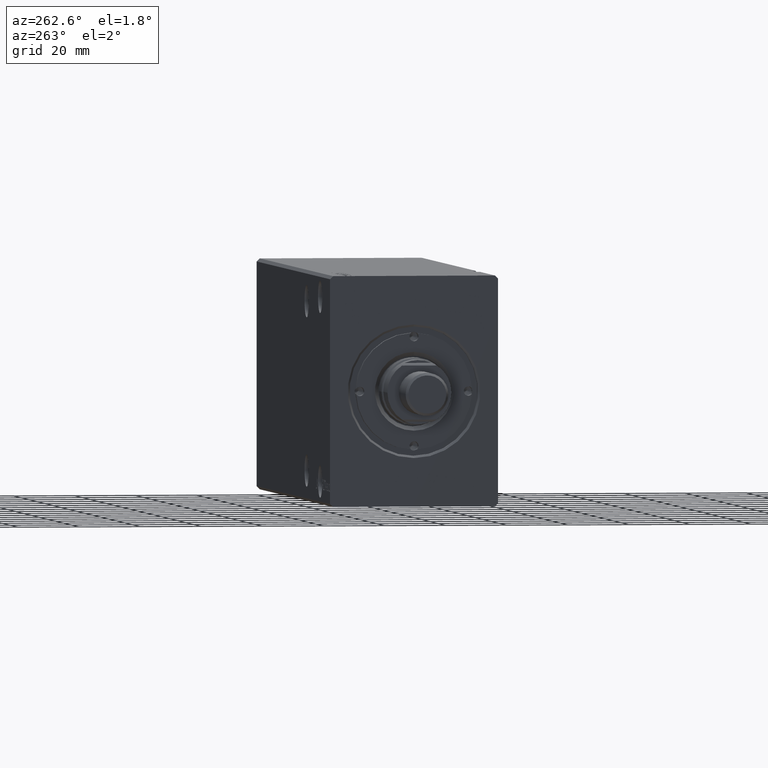
[diagram: clean part render]
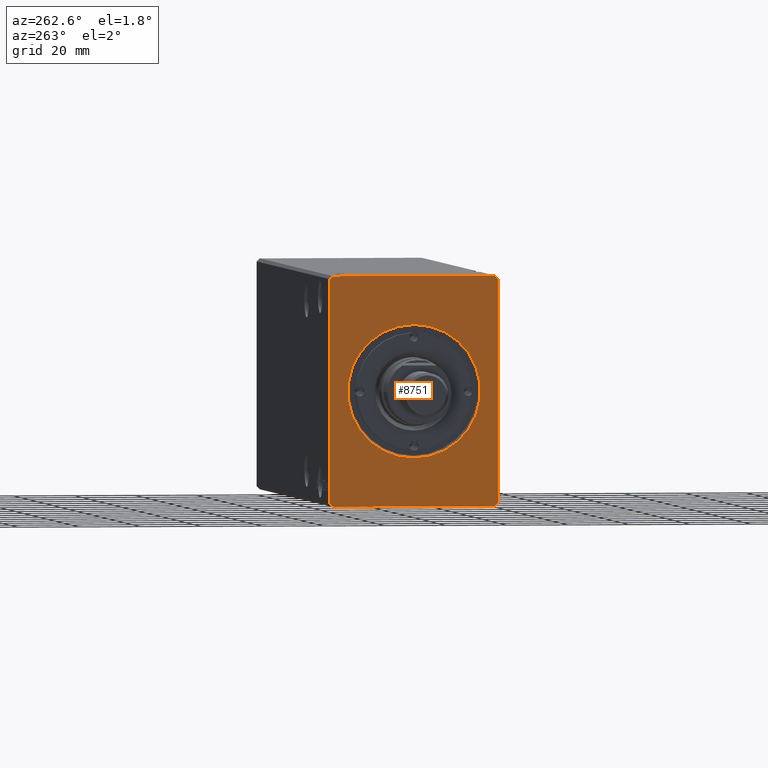
[diagram: same view with one face highlighted and labeled with its STEP entity id]
A machine part, auxiliary view. The second image highlights one B-rep face of the part: STEP entity #8751.
In plain terms, the highlighted planar face has unit normal (1, 0, 0).
Its self-contained STEP definition (entity closure, byte-faithful):
#1003 = ORIENTED_EDGE ( 'NONE', *, *, #10166, .F. ) ;
#1475 = ORIENTED_EDGE ( 'NONE', *, *, #6436, .F. ) ;
#1487 = FACE_BOUND ( 'NONE', #33525, .T. ) ;
#2251 = ORIENTED_EDGE ( 'NONE', *, *, #4912, .F. ) ;
#2388 = DIRECTION ( 'NONE',  ( 0.000000000000000000, 4.752667057470705491E-17, -1.000000000000000000 ) ) ;
#2597 = VECTOR ( 'NONE', #18594, 1000.000000000000000 ) ;
#2629 = DIRECTION ( 'NONE',  ( 0.000000000000000000, 1.000000000000000000, 0.000000000000000000 ) ) ;
#3026 = DIRECTION ( 'NONE',  ( 1.000000000000000000, 0.000000000000000000, 0.000000000000000000 ) ) ;
#3547 = VERTEX_POINT ( 'NONE', #29458 ) ;
#4417 = EDGE_CURVE ( 'NONE', #3547, #12595, #6644, .T. ) ;
#4719 = CARTESIAN_POINT ( 'NONE',  ( 0.000000000000000000, 27.50000000000000711, -36.49999999999999289 ) ) ;
#4832 = ORIENTED_EDGE ( 'NONE', *, *, #35967, .F. ) ;
#4912 = EDGE_CURVE ( 'NONE', #9816, #18045, #37871, .T. ) ;
#5031 = EDGE_CURVE ( 'NONE', #31186, #23995, #32594, .T. ) ;
#5056 = CARTESIAN_POINT ( 'NONE',  ( 0.000000000000000000, -26.50000000000000711, 37.50000000000000711 ) ) ;
#5124 = ORIENTED_EDGE ( 'NONE', *, *, #5031, .F. ) ;
#6436 = EDGE_CURVE ( 'NONE', #12595, #21805, #18595, .T. ) ;
#6644 = LINE ( 'NONE', #19378, #11441 ) ;
#7053 = VERTEX_POINT ( 'NONE', #36841 ) ;
#7811 = LINE ( 'NONE', #11634, #34590 ) ;
#8314 = DIRECTION ( 'NONE',  ( 0.000000000000000000, 0.000000000000000000, -1.000000000000000000 ) ) ;
#8329 = DIRECTION ( 'NONE',  ( 1.000000000000000000, 0.000000000000000000, 0.000000000000000000 ) ) ;
#8562 = LINE ( 'NONE', #20902, #34264 ) ;
#8751 = ADVANCED_FACE ( 'NONE', ( #1487, #32989 ), #26348, .F. ) ;
#8896 = AXIS2_PLACEMENT_3D ( 'NONE', #29757, #26546, #8314 ) ;
#9816 = VERTEX_POINT ( 'NONE', #38918 ) ;
#10166 = EDGE_CURVE ( 'NONE', #33729, #9816, #20458, .T. ) ;
#11339 = EDGE_CURVE ( 'NONE', #7053, #21535, #31689, .T. ) ;
#11441 = VECTOR ( 'NONE', #15939, 1000.000000000000114 ) ;
#11634 = CARTESIAN_POINT ( 'NONE',  ( 0.000000000000000000, 26.50000000000000355, 37.50000000000000711 ) ) ;
#11773 = CARTESIAN_POINT ( 'NONE',  ( 0.000000000000000000, 0.000000000000000000, 0.000000000000000000 ) ) ;
#12595 = VERTEX_POINT ( 'NONE', #37403 ) ;
#12964 = AXIS2_PLACEMENT_3D ( 'NONE', #11773, #8329, #20665 ) ;
#13405 = DIRECTION ( 'NONE',  ( 0.000000000000000000, -0.7071067811865474617, 0.7071067811865474617 ) ) ;
#14522 = VECTOR ( 'NONE', #2388, 1000.000000000000000 ) ;
#15458 = CARTESIAN_POINT ( 'NONE',  ( 0.000000000000000000, 0.000000000000000000, 21.69999999999999574 ) ) ;
#15869 = CARTESIAN_POINT ( 'NONE',  ( 0.000000000000000000, -27.50000000000000711, 36.50000000000000711 ) ) ;
#15939 = DIRECTION ( 'NONE',  ( 0.000000000000000000, 0.7071067811865451302, -0.7071067811865500152 ) ) ;
#17339 = EDGE_CURVE ( 'NONE', #21535, #7053, #39176, .T. ) ;
#17430 = CARTESIAN_POINT ( 'NONE',  ( 0.000000000000000000, -26.50000000000000711, 37.50000000000000711 ) ) ;
#17476 = DIRECTION ( 'NONE',  ( 0.000000000000000000, 0.7071067811865474617, 0.7071067811865474617 ) ) ;
#18045 = VERTEX_POINT ( 'NONE', #36386 ) ;
#18594 = DIRECTION ( 'NONE',  ( 0.000000000000000000, -4.752667057470704875E-17, 1.000000000000000000 ) ) ;
#18595 = LINE ( 'NONE', #21019, #39143 ) ;
#19378 = CARTESIAN_POINT ( 'NONE',  ( 0.000000000000000000, -27.50000000000000355, -36.49999999999998579 ) ) ;
#19477 = CARTESIAN_POINT ( 'NONE',  ( 0.000000000000000000, 27.50000000000000355, 36.50000000000000711 ) ) ;
#20458 = LINE ( 'NONE', #23711, #2597 ) ;
#20665 = DIRECTION ( 'NONE',  ( 0.000000000000000000, 0.000000000000000000, -1.000000000000000000 ) ) ;
#20749 = EDGE_CURVE ( 'NONE', #21805, #33729, #8562, .T. ) ;
#20902 = CARTESIAN_POINT ( 'NONE',  ( 0.000000000000000000, 26.50000000000000711, -37.49999999999999289 ) ) ;
#21019 = CARTESIAN_POINT ( 'NONE',  ( 0.000000000000000000, -26.50000000000000355, -37.49999999999999289 ) ) ;
#21535 = VERTEX_POINT ( 'NONE', #15458 ) ;
#21805 = VERTEX_POINT ( 'NONE', #27345 ) ;
#22583 = ORIENTED_EDGE ( 'NONE', *, *, #23008, .F. ) ;
#23008 = EDGE_CURVE ( 'NONE', #18045, #31186, #7811, .T. ) ;
#23292 = EDGE_LOOP ( 'NONE', ( #2251, #1003, #27127, #1475, #23803, #4832, #5124, #22583 ) ) ;
#23711 = CARTESIAN_POINT ( 'NONE',  ( 0.000000000000000000, 27.50000000000000711, -36.49999999999999289 ) ) ;
#23781 = DIRECTION ( 'NONE',  ( 0.000000000000000000, -1.000000000000000000, 0.000000000000000000 ) ) ;
#23803 = ORIENTED_EDGE ( 'NONE', *, *, #4417, .F. ) ;
#23995 = VERTEX_POINT ( 'NONE', #15869 ) ;
#24966 = AXIS2_PLACEMENT_3D ( 'NONE', #30715, #3026, #27700 ) ;
#26187 = ORIENTED_EDGE ( 'NONE', *, *, #11339, .T. ) ;
#26348 = PLANE ( 'NONE',  #8896 ) ;
#26546 = DIRECTION ( 'NONE',  ( 1.000000000000000000, 0.000000000000000000, 0.000000000000000000 ) ) ;
#27127 = ORIENTED_EDGE ( 'NONE', *, *, #20749, .F. ) ;
#27345 = CARTESIAN_POINT ( 'NONE',  ( 0.000000000000000000, 26.50000000000000711, -37.49999999999999289 ) ) ;
#27700 = DIRECTION ( 'NONE',  ( 0.000000000000000000, 0.000000000000000000, -1.000000000000000000 ) ) ;
#28976 = DIRECTION ( 'NONE',  ( 0.000000000000000000, -0.7071067811865474617, -0.7071067811865474617 ) ) ;
#29458 = CARTESIAN_POINT ( 'NONE',  ( 0.000000000000000000, -27.50000000000000355, -36.49999999999998579 ) ) ;
#29757 = CARTESIAN_POINT ( 'NONE',  ( 0.000000000000000000, 0.000000000000000000, 0.000000000000000000 ) ) ;
#30715 = CARTESIAN_POINT ( 'NONE',  ( 0.000000000000000000, 0.000000000000000000, 0.000000000000000000 ) ) ;
#31186 = VERTEX_POINT ( 'NONE', #5056 ) ;
#31689 = CIRCLE ( 'NONE', #12964, 21.69999999999999574 ) ;
#32594 = LINE ( 'NONE', #17430, #39856 ) ;
#32989 = FACE_OUTER_BOUND ( 'NONE', #23292, .T. ) ;
#33525 = EDGE_LOOP ( 'NONE', ( #38103, #26187 ) ) ;
#33729 = VERTEX_POINT ( 'NONE', #4719 ) ;
#34264 = VECTOR ( 'NONE', #17476, 1000.000000000000114 ) ;
#34590 = VECTOR ( 'NONE', #23781, 1000.000000000000000 ) ;
#35944 = LINE ( 'NONE', #39184, #14522 ) ;
#35967 = EDGE_CURVE ( 'NONE', #23995, #3547, #35944, .T. ) ;
#36386 = CARTESIAN_POINT ( 'NONE',  ( 0.000000000000000000, 26.50000000000000355, 37.50000000000000711 ) ) ;
#36841 = CARTESIAN_POINT ( 'NONE',  ( 0.000000000000000000, 2.657483554149755949E-15, -21.69999999999999574 ) ) ;
#37403 = CARTESIAN_POINT ( 'NONE',  ( 0.000000000000000000, -26.50000000000000355, -37.49999999999999289 ) ) ;
#37871 = LINE ( 'NONE', #19477, #39219 ) ;
#38103 = ORIENTED_EDGE ( 'NONE', *, *, #17339, .T. ) ;
#38918 = CARTESIAN_POINT ( 'NONE',  ( 0.000000000000000000, 27.50000000000000355, 36.50000000000000711 ) ) ;
#39143 = VECTOR ( 'NONE', #2629, 1000.000000000000000 ) ;
#39176 = CIRCLE ( 'NONE', #24966, 21.69999999999999574 ) ;
#39184 = CARTESIAN_POINT ( 'NONE',  ( 0.000000000000000000, -27.50000000000000711, 36.50000000000000711 ) ) ;
#39219 = VECTOR ( 'NONE', #13405, 1000.000000000000114 ) ;
#39856 = VECTOR ( 'NONE', #28976, 1000.000000000000114 ) ;